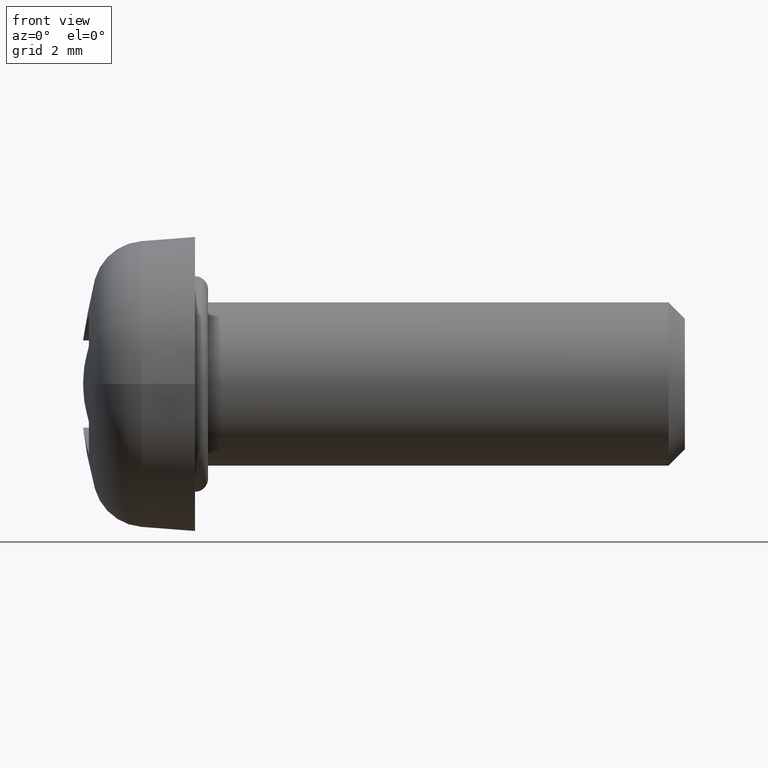
[diagram: clean part render]
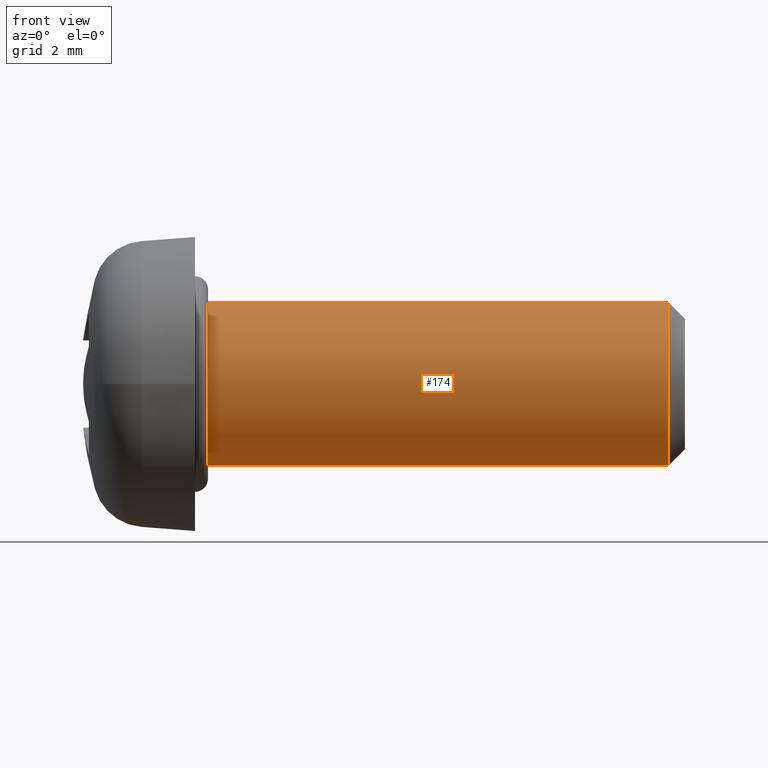
[diagram: same view with one face highlighted and labeled with its STEP entity id]
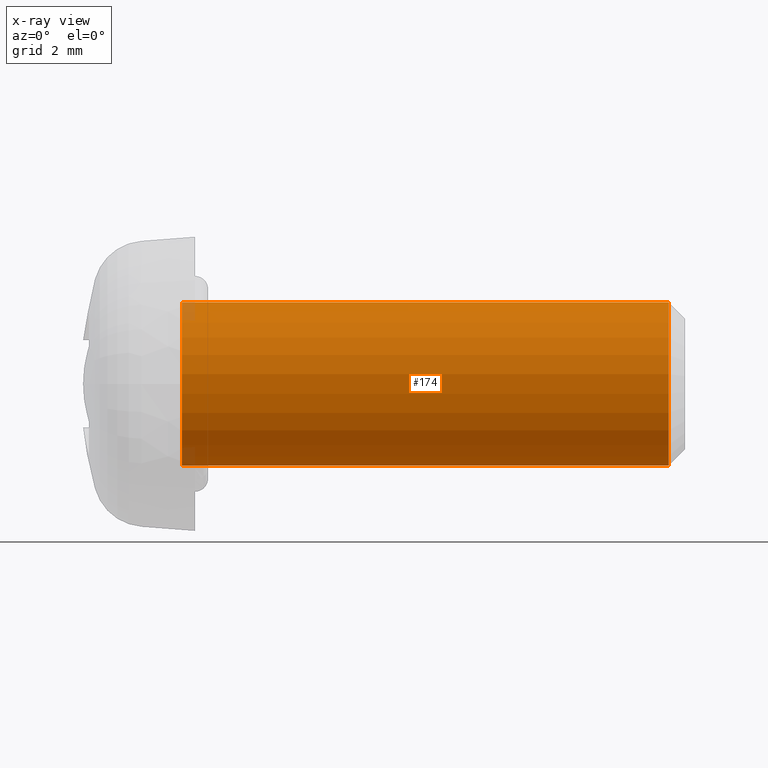
[diagram: x-ray of the same camera — body ghosted, the highlighted face saturated]
A machine part, front view. The second image highlights one B-rep face of the part: STEP entity #174.
The next image is the same camera in x-ray: the body ghosted, the highlighted face saturated — about 1% of this face is hidden behind the body in this view.
In plain terms, the highlighted cylindrical surface (partial cylindrical patch) has radius 2.5 mm, axis along (-1, -0, -0).
Its self-contained STEP definition (entity closure, byte-faithful):
#40 = DIRECTION ( 'NONE',  ( -1.000000000000000000, -0.0000000000000000000, -0.0000000000000000000 ) ) ;
#73 = VECTOR ( 'NONE', #591, 1000.000000000000000 ) ;
#110 = AXIS2_PLACEMENT_3D ( 'NONE', #1027, #810, #615 ) ;
#120 = DIRECTION ( 'NONE',  ( 0.0000000000000000000, 0.0000000000000000000, -1.000000000000000000 ) ) ;
#138 = CARTESIAN_POINT ( 'NONE',  ( 14.49999999999999300, 0.0000000000000000000, 2.500000000000000000 ) ) ;
#157 = VERTEX_POINT ( 'NONE', #828 ) ;
#164 = EDGE_CURVE ( 'NONE', #941, #1059, #331, .T. ) ;
#174 = ADVANCED_FACE ( 'NONE', ( #1098 ), #562, .T. ) ;
#177 = AXIS2_PLACEMENT_3D ( 'NONE', #308, #721, #1188 ) ;
#180 = EDGE_CURVE ( 'NONE', #193, #941, #829, .T. ) ;
#193 = VERTEX_POINT ( 'NONE', #1183 ) ;
#308 = CARTESIAN_POINT ( 'NONE',  ( 15.00000000000000000, 0.0000000000000000000, 0.0000000000000000000 ) ) ;
#324 = DIRECTION ( 'NONE',  ( 1.000000000000000000, 0.0000000000000000000, 0.0000000000000000000 ) ) ;
#331 = LINE ( 'NONE', #397, #73 ) ;
#381 = CARTESIAN_POINT ( 'NONE',  ( -0.4000000000000000200, 0.0000000000000000000, 2.500000000000000000 ) ) ;
#397 = CARTESIAN_POINT ( 'NONE',  ( 15.00000000000000000, 0.0000000000000000000, 2.500000000000000000 ) ) ;
#401 = EDGE_LOOP ( 'NONE', ( #1175, #857, #787, #816 ) ) ;
#423 = CARTESIAN_POINT ( 'NONE',  ( 15.00000000000000000, 3.061616997868383100E-016, -2.500000000000000000 ) ) ;
#460 = VECTOR ( 'NONE', #40, 1000.000000000000000 ) ;
#535 = EDGE_CURVE ( 'NONE', #1059, #157, #708, .T. ) ;
#562 = CYLINDRICAL_SURFACE ( 'NONE', #177, 2.500000000000000000 ) ;
#591 = DIRECTION ( 'NONE',  ( -1.000000000000000000, -0.0000000000000000000, -0.0000000000000000000 ) ) ;
#615 = DIRECTION ( 'NONE',  ( 0.0000000000000000000, 0.0000000000000000000, -1.000000000000000000 ) ) ;
#638 = EDGE_CURVE ( 'NONE', #193, #157, #720, .T. ) ;
#708 = CIRCLE ( 'NONE', #956, 2.500000000000000000 ) ;
#720 = LINE ( 'NONE', #423, #460 ) ;
#721 = DIRECTION ( 'NONE',  ( -1.000000000000000000, -0.0000000000000000000, -0.0000000000000000000 ) ) ;
#787 = ORIENTED_EDGE ( 'NONE', *, *, #164, .T. ) ;
#810 = DIRECTION ( 'NONE',  ( -1.000000000000000000, 0.0000000000000000000, 0.0000000000000000000 ) ) ;
#816 = ORIENTED_EDGE ( 'NONE', *, *, #535, .T. ) ;
#828 = CARTESIAN_POINT ( 'NONE',  ( -0.4000000000000000200, 3.061616997868383100E-016, -2.500000000000000000 ) ) ;
#829 = CIRCLE ( 'NONE', #110, 2.500000000000000000 ) ;
#857 = ORIENTED_EDGE ( 'NONE', *, *, #180, .T. ) ;
#904 = CARTESIAN_POINT ( 'NONE',  ( -0.4000000000000000200, 0.0000000000000000000, 0.0000000000000000000 ) ) ;
#941 = VERTEX_POINT ( 'NONE', #138 ) ;
#956 = AXIS2_PLACEMENT_3D ( 'NONE', #904, #324, #120 ) ;
#1027 = CARTESIAN_POINT ( 'NONE',  ( 14.49999999999999300, 0.0000000000000000000, 0.0000000000000000000 ) ) ;
#1059 = VERTEX_POINT ( 'NONE', #381 ) ;
#1098 = FACE_OUTER_BOUND ( 'NONE', #401, .T. ) ;
#1175 = ORIENTED_EDGE ( 'NONE', *, *, #638, .F. ) ;
#1183 = CARTESIAN_POINT ( 'NONE',  ( 14.49999999999999300, 3.061616997868383100E-016, -2.500000000000000000 ) ) ;
#1188 = DIRECTION ( 'NONE',  ( 0.0000000000000000000, 0.0000000000000000000, 1.000000000000000000 ) ) ;